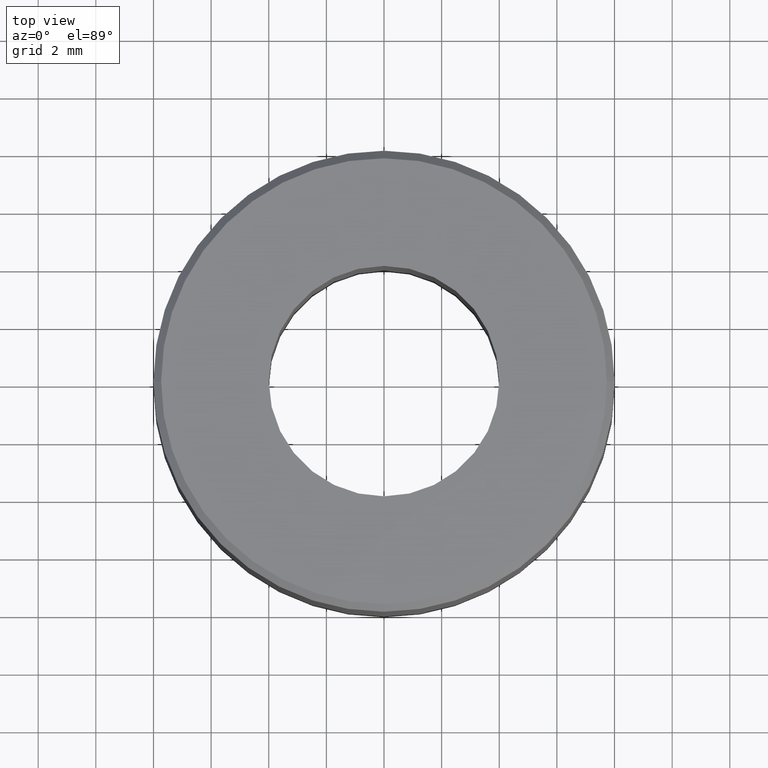
[diagram: clean part render]
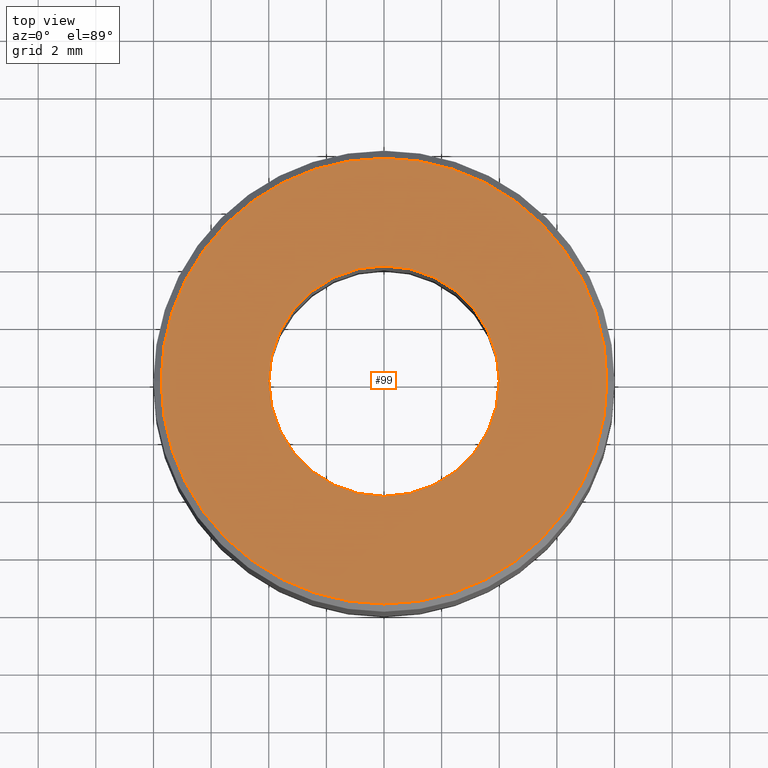
[diagram: same view with one face highlighted and labeled with its STEP entity id]
A machine part, top view. The second image highlights one B-rep face of the part: STEP entity #99.
In plain terms, the highlighted planar face has unit normal (0, 0, -1).
Its self-contained STEP definition (entity closure, byte-faithful):
#24 = CARTESIAN_POINT ( 'NONE',  ( 7.734513274336237000, 9.634610658778705300E-016, 11.49999999999980300 ) ) ;
#35 = AXIS2_PLACEMENT_3D ( 'NONE', #190, #179, #209 ) ;
#41 = CARTESIAN_POINT ( 'NONE',  ( -3.999999999999998200, 4.898587196589411800E-016, 11.49999999999980300 ) ) ;
#42 = EDGE_LOOP ( 'NONE', ( #224, #85 ) ) ;
#46 = CARTESIAN_POINT ( 'NONE',  ( 0.0000000000000000000, 0.0000000000000000000, 11.49999999999980300 ) ) ;
#51 = CARTESIAN_POINT ( 'NONE',  ( 3.999999999999998200, 0.0000000000000000000, 11.49999999999980300 ) ) ;
#54 = EDGE_LOOP ( 'NONE', ( #283, #306 ) ) ;
#58 = EDGE_CURVE ( 'NONE', #328, #63, #98, .T. ) ;
#62 = VERTEX_POINT ( 'NONE', #24 ) ;
#63 = VERTEX_POINT ( 'NONE', #51 ) ;
#73 = CARTESIAN_POINT ( 'NONE',  ( 0.0000000000000000000, 0.0000000000000000000, 11.49999999999980300 ) ) ;
#85 = ORIENTED_EDGE ( 'NONE', *, *, #210, .T. ) ;
#97 = CARTESIAN_POINT ( 'NONE',  ( 0.0000000000000000000, 0.0000000000000000000, 11.49999999999980300 ) ) ;
#98 = CIRCLE ( 'NONE', #123, 3.999999999999998200 ) ;
#99 = ADVANCED_FACE ( 'NONE', ( #211, #267 ), #140, .F. ) ;
#111 = CARTESIAN_POINT ( 'NONE',  ( 0.0000000000000000000, 7.734513274336237000, 11.49999999999980100 ) ) ;
#123 = AXIS2_PLACEMENT_3D ( 'NONE', #73, #200, #138 ) ;
#127 = EDGE_CURVE ( 'NONE', #310, #62, #316, .T. ) ;
#132 = DIRECTION ( 'NONE',  ( -0.0000000000000000000, -0.0000000000000000000, 1.000000000000000000 ) ) ;
#138 = DIRECTION ( 'NONE',  ( 1.000000000000000000, 0.0000000000000000000, 0.0000000000000000000 ) ) ;
#140 = PLANE ( 'NONE',  #231 ) ;
#179 = DIRECTION ( 'NONE',  ( -0.0000000000000000000, -0.0000000000000000000, 1.000000000000000000 ) ) ;
#186 = DIRECTION ( 'NONE',  ( -0.0000000000000000000, -0.0000000000000000000, 1.000000000000000000 ) ) ;
#190 = CARTESIAN_POINT ( 'NONE',  ( 0.0000000000000000000, 0.0000000000000000000, 11.49999999999980300 ) ) ;
#194 = AXIS2_PLACEMENT_3D ( 'NONE', #46, #132, #294 ) ;
#197 = CIRCLE ( 'NONE', #35, 3.999999999999998200 ) ;
#200 = DIRECTION ( 'NONE',  ( -0.0000000000000000000, -0.0000000000000000000, 1.000000000000000000 ) ) ;
#209 = DIRECTION ( 'NONE',  ( 1.000000000000000000, 0.0000000000000000000, 0.0000000000000000000 ) ) ;
#210 = EDGE_CURVE ( 'NONE', #62, #310, #278, .T. ) ;
#211 = FACE_BOUND ( 'NONE', #54, .T. ) ;
#216 = AXIS2_PLACEMENT_3D ( 'NONE', #97, #186, #287 ) ;
#219 = DIRECTION ( 'NONE',  ( -1.000000000000000000, 0.0000000000000000000, -0.0000000000000000000 ) ) ;
#224 = ORIENTED_EDGE ( 'NONE', *, *, #127, .T. ) ;
#231 = AXIS2_PLACEMENT_3D ( 'NONE', #111, #248, #219 ) ;
#248 = DIRECTION ( 'NONE',  ( 0.0000000000000000000, 0.0000000000000000000, -1.000000000000000000 ) ) ;
#267 = FACE_OUTER_BOUND ( 'NONE', #42, .T. ) ;
#278 = CIRCLE ( 'NONE', #194, 7.734513274336237000 ) ;
#282 = EDGE_CURVE ( 'NONE', #63, #328, #197, .T. ) ;
#283 = ORIENTED_EDGE ( 'NONE', *, *, #282, .F. ) ;
#287 = DIRECTION ( 'NONE',  ( 1.000000000000000000, 0.0000000000000000000, 0.0000000000000000000 ) ) ;
#289 = CARTESIAN_POINT ( 'NONE',  ( -7.734513274336237000, 0.0000000000000000000, 11.49999999999980300 ) ) ;
#294 = DIRECTION ( 'NONE',  ( 1.000000000000000000, 0.0000000000000000000, 0.0000000000000000000 ) ) ;
#306 = ORIENTED_EDGE ( 'NONE', *, *, #58, .F. ) ;
#310 = VERTEX_POINT ( 'NONE', #289 ) ;
#316 = CIRCLE ( 'NONE', #216, 7.734513274336237000 ) ;
#328 = VERTEX_POINT ( 'NONE', #41 ) ;